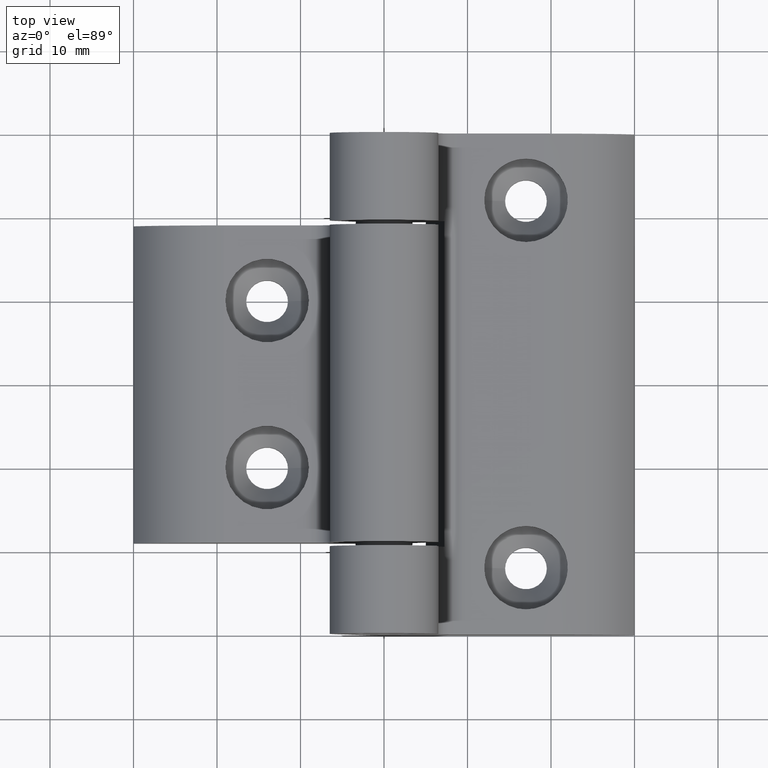
[diagram: clean part render]
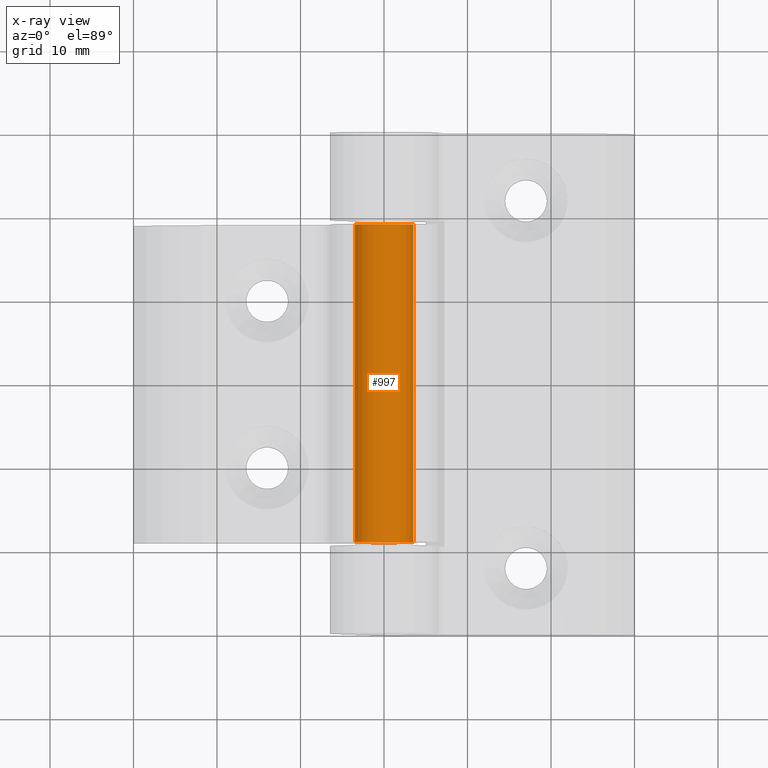
[diagram: x-ray — body ghosted, one internal face saturated and labeled with its STEP entity id]
A machine part, top view, then the same camera in x-ray: the body is ghosted and one INTERNAL B-rep face — a face not visible from any outside direction — is saturated and labeled: STEP entity #997.
In plain terms, the highlighted cylindrical surface (bore or boss wall) has radius 3.5 mm, axis along (-0, -1, -0).
Its self-contained STEP definition (entity closure, byte-faithful):
#101=CYLINDRICAL_SURFACE('',#1181,3.5);
#138=FACE_OUTER_BOUND('',#193,.T.);
#193=EDGE_LOOP('',(#867,#868,#869,#870,#871));
#266=LINE('',#1813,#335);
#335=VECTOR('',#1434,3.5);
#399=CIRCLE('',#1182,3.5);
#400=CIRCLE('',#1183,3.5);
#401=CIRCLE('',#1184,3.5);
#489=VERTEX_POINT('',#1808);
#490=VERTEX_POINT('',#1809);
#491=VERTEX_POINT('',#1812);
#623=EDGE_CURVE('',#489,#490,#399,.T.);
#624=EDGE_CURVE('',#490,#489,#400,.T.);
#625=EDGE_CURVE('',#490,#491,#266,.T.);
#626=EDGE_CURVE('',#491,#491,#401,.T.);
#867=ORIENTED_EDGE('',*,*,#623,.F.);
#868=ORIENTED_EDGE('',*,*,#624,.F.);
#869=ORIENTED_EDGE('',*,*,#625,.T.);
#870=ORIENTED_EDGE('',*,*,#626,.F.);
#871=ORIENTED_EDGE('',*,*,#625,.F.);
#997=ADVANCED_FACE('',(#138),#101,.F.);
#1181=AXIS2_PLACEMENT_3D('',#1807,#1428,#1429);
#1182=AXIS2_PLACEMENT_3D('',#1810,#1430,#1431);
#1183=AXIS2_PLACEMENT_3D('',#1811,#1432,#1433);
#1184=AXIS2_PLACEMENT_3D('',#1814,#1435,#1436);
#1428=DIRECTION('center_axis',(0.,1.,0.));
#1429=DIRECTION('ref_axis',(-1.,0.,0.));
#1430=DIRECTION('center_axis',(0.,-1.,0.));
#1431=DIRECTION('ref_axis',(-1.,0.,0.));
#1432=DIRECTION('center_axis',(0.,-1.,0.));
#1433=DIRECTION('ref_axis',(-1.,0.,0.));
#1434=DIRECTION('',(0.,-1.,0.));
#1435=DIRECTION('center_axis',(0.,1.,0.));
#1436=DIRECTION('ref_axis',(-1.,0.,0.));
#1807=CARTESIAN_POINT('Origin',(0.,-38.0279787611408,-1.38777878078145E-15));
#1808=CARTESIAN_POINT('',(-3.5,19.,-1.38777878078145E-15));
#1809=CARTESIAN_POINT('',(3.5,19.,-1.81640516048302E-15));
#1810=CARTESIAN_POINT('Origin',(0.,19.,-1.38777878078145E-15));
#1811=CARTESIAN_POINT('Origin',(0.,19.,-1.38777878078145E-15));
#1812=CARTESIAN_POINT('',(3.5,-19.,-1.81640516048302E-15));
#1813=CARTESIAN_POINT('',(3.5,-38.0279787611408,-1.81640516048302E-15));
#1814=CARTESIAN_POINT('Origin',(0.,-19.,-1.38777878078145E-15));